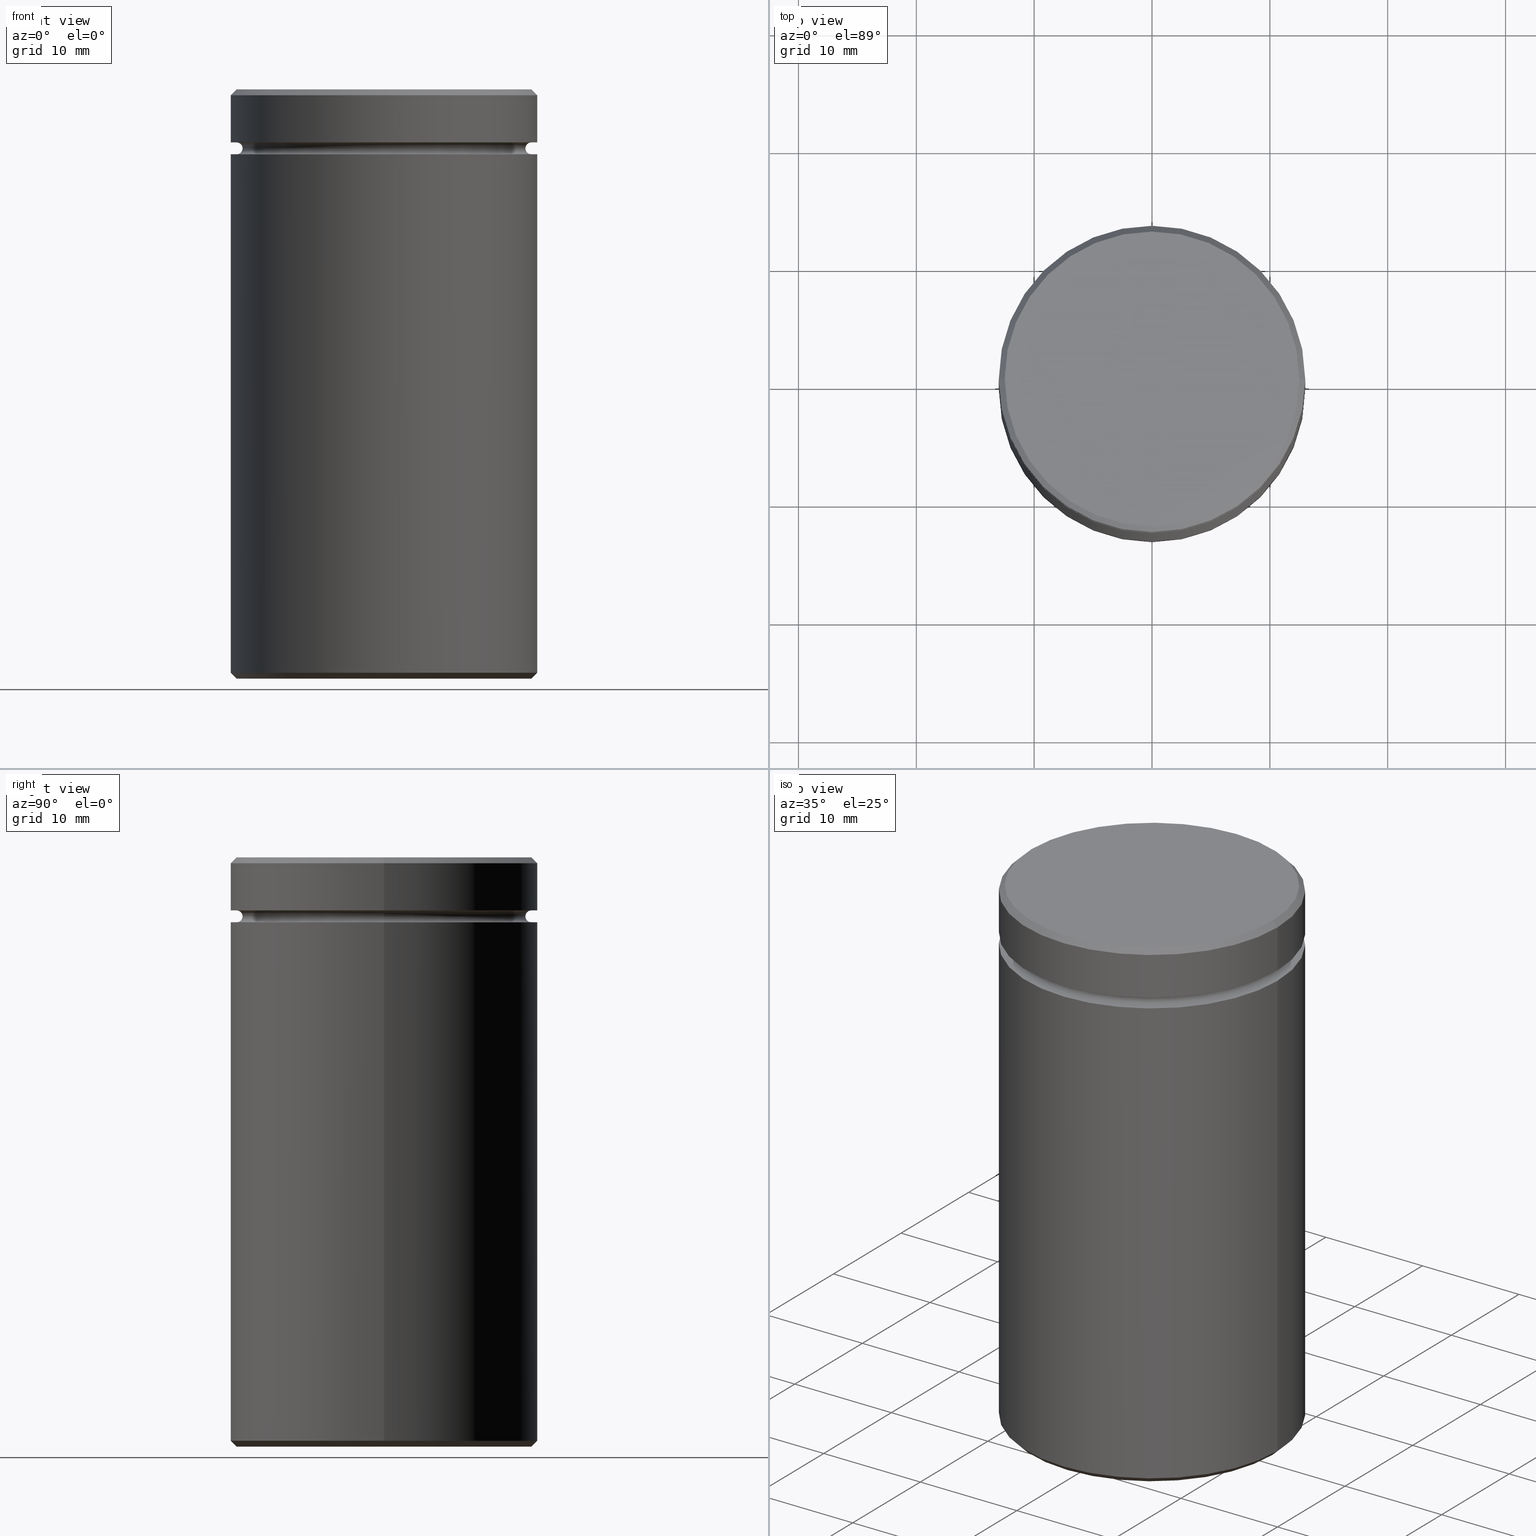
[diagram: canonical four-view strip — front | top / right | iso, engineering-drawing reading convention]
A machine part, canonical four-view strip (front | top / right | iso — engineering-drawing reading convention). The complete STEP part file that produces these views, byte-faithful:
ISO-10303-21;
HEADER;
FILE_DESCRIPTION (( 'STEP AP203' ),
    '1' );
FILE_NAME ('87cd.STEP',
    '2024-01-02T19:37:10',
    ( '' ),
    ( '' ),
    'SwSTEP 2.0',
    'SolidWorks 2019',
    '' );
FILE_SCHEMA (( 'CONFIG_CONTROL_DESIGN' ));
ENDSEC;

DATA;
#1 = PLANE ( 'NONE',  #507 ) ;
#2 = EDGE_CURVE ( 'NONE', #296, #242, #553, .T. ) ;
#3 = APPROVAL_ROLE ( '' ) ;
#4 = CIRCLE ( 'NONE', #468, 12.50000000000000000 ) ;
#5 = DIRECTION ( 'NONE',  ( 1.000000000000000000, 0.000000000000000000, 0.000000000000000000 ) ) ;
#6 = APPROVAL_DATE_TIME ( #141, #21 ) ;
#7 = ORIENTED_EDGE ( 'NONE', *, *, #301, .T. ) ;
#8 = VERTEX_POINT ( 'NONE', #210 ) ;
#9 = DIRECTION ( 'NONE',  ( 0.000000000000000000, 0.000000000000000000, -1.000000000000000000 ) ) ;
#10 = VERTEX_POINT ( 'NONE', #114 ) ;
#11 = CARTESIAN_POINT ( 'NONE',  ( 0.000000000000000000, 0.000000000000000000, -50.00000000000000000 ) ) ;
#12 = EDGE_CURVE ( 'NONE', #458, #66, #254, .T. ) ;
#13 = ORIENTED_EDGE ( 'NONE', *, *, #459, .F. ) ;
#14 = VECTOR ( 'NONE', #238, 1000.000000000000000 ) ;
#15 = CARTESIAN_POINT ( 'NONE',  ( 0.000000000000000000, 0.000000000000000000, -49.50000000000001421 ) ) ;
#16 = COORDINATED_UNIVERSAL_TIME_OFFSET ( 1, 0, .AHEAD. ) ;
#17 = ADVANCED_FACE ( 'NONE', ( #117 ), #181, .T. ) ;
#18 = ORIENTED_EDGE ( 'NONE', *, *, #2, .F. ) ;
#19 = DIRECTION ( 'NONE',  ( -1.000000000000000000, 0.000000000000000000, 0.000000000000000000 ) ) ;
#20 = ORIENTED_EDGE ( 'NONE', *, *, #328, .T. ) ;
#21 = APPROVAL ( #464, 'NEUR�EN�' ) ;
#22 = ORIENTED_EDGE ( 'NONE', *, *, #494, .F. ) ;
#23 = AXIS2_PLACEMENT_3D ( 'NONE', #344, #353, #541 ) ;
#24 = CARTESIAN_POINT ( 'NONE',  ( 13.00000000000000000, 0.000000000000000000, -49.50000000000001421 ) ) ;
#25 = DIRECTION ( 'NONE',  ( 1.000000000000000000, 0.000000000000000000, 0.000000000000000000 ) ) ;
#26 = EDGE_CURVE ( 'NONE', #242, #8, #173, .T. ) ;
#27 = VECTOR ( 'NONE', #81, 1000.000000000000000 ) ;
#28 = FACE_OUTER_BOUND ( 'NONE', #313, .T. ) ;
#29 = CC_DESIGN_PERSON_AND_ORGANIZATION_ASSIGNMENT ( #546, #277, ( #501 ) ) ;
#30 = EDGE_LOOP ( 'NONE', ( #495, #51 ) ) ;
#31 = AXIS2_PLACEMENT_3D ( 'NONE', #467, #336, #41 ) ;
#32 = VECTOR ( 'NONE', #50, 1000.000000000000000 ) ;
#33 = CARTESIAN_POINT ( 'NONE',  ( 0.000000000000000000, 0.000000000000000000, -5.500000000000000000 ) ) ;
#34 = EDGE_CURVE ( 'NONE', #296, #105, #122, .T. ) ;
#35 = PERSON_AND_ORGANIZATION_ROLE ( 'classification_officer' ) ;
#36 = APPROVAL_DATE_TIME ( #462, #488 ) ;
#37 = TOROIDAL_SURFACE ( 'NONE', #217, 12.50000000000000000, 0.5000000000000000000 ) ;
#38 = EDGE_LOOP ( 'NONE', ( #157, #475, #384, #64 ) ) ;
#39 = CIRCLE ( 'NONE', #397, 0.5000000000000004441 ) ;
#40 = DIRECTION ( 'NONE',  ( 1.000000000000000000, 0.000000000000000000, 0.000000000000000000 ) ) ;
#41 = DIRECTION ( 'NONE',  ( -1.000000000000000000, 0.000000000000000000, 0.000000000000000000 ) ) ;
#42 = ORIENTED_EDGE ( 'NONE', *, *, #448, .T. ) ;
#43 = CALENDAR_DATE ( 2024, 2, 1 ) ;
#44 = CARTESIAN_POINT ( 'NONE',  ( 13.00000000000000000, 0.000000000000000000, -4.500000000000000888 ) ) ;
#45 = ADVANCED_FACE ( 'NONE', ( #383, #329 ), #293, .T. ) ;
#46 = CARTESIAN_POINT ( 'NONE',  ( -12.50000000000000000, 1.530808498934191521E-15, -4.999999999999999112 ) ) ;
#47 = DIRECTION ( 'NONE',  ( 0.000000000000000000, 0.000000000000000000, -1.000000000000000000 ) ) ;
#48 = ORIENTED_EDGE ( 'NONE', *, *, #412, .T. ) ;
#49 = CARTESIAN_POINT ( 'NONE',  ( 0.000000000000000000, 0.000000000000000000, -49.50000000000001421 ) ) ;
#50 = DIRECTION ( 'NONE',  ( -0.000000000000000000, -0.000000000000000000, 1.000000000000000000 ) ) ;
#51 = ORIENTED_EDGE ( 'NONE', *, *, #77, .T. ) ;
#52 = APPROVAL_PERSON_ORGANIZATION ( #477, #21, #3 ) ;
#53 = DIRECTION ( 'NONE',  ( -1.000000000000000000, 0.000000000000000000, 0.000000000000000000 ) ) ;
#54 = EDGE_CURVE ( 'NONE', #105, #394, #460, .T. ) ;
#55 = CARTESIAN_POINT ( 'NONE',  ( 0.000000000000000000, 0.000000000000000000, -5.500000000000000000 ) ) ;
#56 = CARTESIAN_POINT ( 'NONE',  ( 0.000000000000000000, 0.000000000000000000, 0.000000000000000000 ) ) ;
#57 = VERTEX_POINT ( 'NONE', #78 ) ;
#58 = FACE_OUTER_BOUND ( 'NONE', #548, .T. ) ;
#59 = ORIENTED_EDGE ( 'NONE', *, *, #107, .T. ) ;
#60 = CARTESIAN_POINT ( 'NONE',  ( 0.000000000000000000, 0.000000000000000000, 0.000000000000000000 ) ) ;
#61 = EDGE_LOOP ( 'NONE', ( #22, #434, #162, #110 ) ) ;
#62 = DIRECTION ( 'NONE',  ( -0.000000000000000000, -0.000000000000000000, 1.000000000000000000 ) ) ;
#63 = AXIS2_PLACEMENT_3D ( 'NONE', #15, #156, #350 ) ;
#64 = ORIENTED_EDGE ( 'NONE', *, *, #113, .F. ) ;
#65 = ADVANCED_FACE ( 'NONE', ( #84 ), #1, .T. ) ;
#66 = VERTEX_POINT ( 'NONE', #190 ) ;
#67 = CARTESIAN_POINT ( 'NONE',  ( 0.000000000000000000, 0.000000000000000000, -4.999999999999999112 ) ) ;
#68 = CONICAL_SURFACE ( 'NONE', #380, 12.50000000000000355, 0.7853981633974430610 ) ;
#69 = CARTESIAN_POINT ( 'NONE',  ( 0.000000000000000000, 0.000000000000000000, -5.000000000000000888 ) ) ;
#70 = PERSON_AND_ORGANIZATION_ROLE ( 'design_owner' ) ;
#71 = ORIENTED_EDGE ( 'NONE', *, *, #2, .T. ) ;
#72 = DIRECTION ( 'NONE',  ( -0.000000000000000000, -1.000000000000000000, -0.000000000000000000 ) ) ;
#73 = CIRCLE ( 'NONE', #178, 12.00000000000000000 ) ;
#74 = ADVANCED_FACE ( 'NONE', ( #379 ), #225, .T. ) ;
#75 = ORIENTED_EDGE ( 'NONE', *, *, #368, .F. ) ;
#76 = APPLICATION_PROTOCOL_DEFINITION ( 'international standard', 'config_control_design', 1994, #193 ) ;
#77 = EDGE_CURVE ( 'NONE', #10, #423, #334, .T. ) ;
#78 = CARTESIAN_POINT ( 'NONE',  ( 13.00000000000000000, 0.000000000000000000, -0.5000000000000004441 ) ) ;
#79 = CIRCLE ( 'NONE', #372, 13.00000000000000000 ) ;
#80 = VECTOR ( 'NONE', #400, 999.9999999999998863 ) ;
#81 = DIRECTION ( 'NONE',  ( -0.7071067811865487940, 8.659560562354948882E-17, 0.7071067811865463515 ) ) ;
#82 = CARTESIAN_POINT ( 'NONE',  ( 0.000000000000000000, 0.000000000000000000, -4.500000000000000888 ) ) ;
#83 = DIRECTION ( 'NONE',  ( -1.000000000000000000, 0.000000000000000000, 0.000000000000000000 ) ) ;
#84 = FACE_OUTER_BOUND ( 'NONE', #409, .T. ) ;
#85 = ADVANCED_BREP_SHAPE_REPRESENTATION ( '87cd', ( #312, #202 ), #125 ) ;
#86 = DIRECTION ( 'NONE',  ( 0.000000000000000000, -0.000000000000000000, 1.000000000000000000 ) ) ;
#87 = AXIS2_PLACEMENT_3D ( 'NONE', #60, #513, #503 ) ;
#88 = CIRCLE ( 'NONE', #288, 12.50000000000000000 ) ;
#89 = CARTESIAN_POINT ( 'NONE',  ( 0.000000000000000000, 12.00000000000000000, -5.500000000000000000 ) ) ;
#90 = PRODUCT_RELATED_PRODUCT_CATEGORY ( 'detail', '', ( #251 ) ) ;
#91 = DIRECTION ( 'NONE',  ( 1.000000000000000000, 0.000000000000000000, 0.000000000000000000 ) ) ;
#92 = DATE_TIME_ROLE ( 'creation_date' ) ;
#93 = PLANE ( 'NONE',  #419 ) ;
#94 = ADVANCED_FACE ( 'NONE', ( #417 ), #68, .T. ) ;
#95 = LINE ( 'NONE', #338, #138 ) ;
#96 = ORIENTED_EDGE ( 'NONE', *, *, #526, .F. ) ;
#97 = DIRECTION ( 'NONE',  ( -0.000000000000000000, -0.000000000000000000, -1.000000000000000000 ) ) ;
#98 = CIRCLE ( 'NONE', #403, 13.00000000000000000 ) ;
#99 = CIRCLE ( 'NONE', #359, 0.5000000000000004441 ) ;
#100 = CYLINDRICAL_SURFACE ( 'NONE', #168, 13.00000000000000000 ) ;
#101 = ORIENTED_EDGE ( 'NONE', *, *, #463, .F. ) ;
#102 = DIRECTION ( 'NONE',  ( 0.000000000000000000, 0.000000000000000000, -1.000000000000000000 ) ) ;
#103 = ORIENTED_EDGE ( 'NONE', *, *, #377, .F. ) ;
#104 = AXIS2_PLACEMENT_3D ( 'NONE', #525, #216, #413 ) ;
#105 = VERTEX_POINT ( 'NONE', #518 ) ;
#106 = DIRECTION ( 'NONE',  ( -0.000000000000000000, -0.000000000000000000, 1.000000000000000000 ) ) ;
#107 = EDGE_CURVE ( 'NONE', #167, #455, #265, .T. ) ;
#108 = AXIS2_PLACEMENT_3D ( 'NONE', #309, #484, #19 ) ;
#109 = ORIENTED_EDGE ( 'NONE', *, *, #26, .F. ) ;
#110 = ORIENTED_EDGE ( 'NONE', *, *, #271, .F. ) ;
#111 = DIRECTION ( 'NONE',  ( 1.000000000000000000, 0.000000000000000000, 0.000000000000000000 ) ) ;
#112 = CARTESIAN_POINT ( 'NONE',  ( -12.00000000000000000, 1.500192328955507734E-15, -4.999999999999999112 ) ) ;
#113 = EDGE_CURVE ( 'NONE', #57, #508, #330, .T. ) ;
#114 = CARTESIAN_POINT ( 'NONE',  ( -12.50000000000000000, 1.530808498934191521E-15, -5.500000000000000000 ) ) ;
#115 = DIRECTION ( 'NONE',  ( 0.000000000000000000, 0.000000000000000000, -1.000000000000000000 ) ) ;
#116 = AXIS2_PLACEMENT_3D ( 'NONE', #346, #465, #332 ) ;
#117 = FACE_OUTER_BOUND ( 'NONE', #234, .T. ) ;
#118 = DIRECTION ( 'NONE',  ( 0.000000000000000000, 0.000000000000000000, -1.000000000000000000 ) ) ;
#119 = VECTOR ( 'NONE', #517, 1000.000000000000000 ) ;
#120 = ORIENTED_EDGE ( 'NONE', *, *, #271, .T. ) ;
#121 = AXIS2_PLACEMENT_3D ( 'NONE', #214, #124, #415 ) ;
#122 = CIRCLE ( 'NONE', #427, 12.50000000000001066 ) ;
#123 = DIRECTION ( 'NONE',  ( -0.000000000000000000, -0.000000000000000000, 1.000000000000000000 ) ) ;
#124 = DIRECTION ( 'NONE',  ( -0.000000000000000000, -0.000000000000000000, 1.000000000000000000 ) ) ;
#125 =( GEOMETRIC_REPRESENTATION_CONTEXT ( 3 ) GLOBAL_UNCERTAINTY_ASSIGNED_CONTEXT ( ( #559 ) ) GLOBAL_UNIT_ASSIGNED_CONTEXT ( ( #142, #220, #378 ) ) REPRESENTATION_CONTEXT ( 'NONE', 'WORKASPACE' ) );
#126 = VERTEX_POINT ( 'NONE', #299 ) ;
#127 = CARTESIAN_POINT ( 'NONE',  ( 12.00000000000000000, 0.000000000000000000, -4.999999999999999112 ) ) ;
#128 = CARTESIAN_POINT ( 'NONE',  ( 13.00000000000000000, 0.000000000000000000, 0.000000000000000000 ) ) ;
#129 = DIRECTION ( 'NONE',  ( -1.224646799147353207E-16, 1.000000000000000000, 0.000000000000000000 ) ) ;
#130 = EDGE_CURVE ( 'NONE', #327, #423, #396, .T. ) ;
#131 = VERTEX_POINT ( 'NONE', #421 ) ;
#132 = ORIENTED_EDGE ( 'NONE', *, *, #412, .F. ) ;
#133 = FACE_OUTER_BOUND ( 'NONE', #491, .T. ) ;
#134 = DIRECTION ( 'NONE',  ( 0.000000000000000000, 0.000000000000000000, -1.000000000000000000 ) ) ;
#135 = PRODUCT_DEFINITION ( 'NEZN�M�', '', #501, #257 ) ;
#136 = AXIS2_PLACEMENT_3D ( 'NONE', #284, #292, #25 ) ;
#137 = COORDINATED_UNIVERSAL_TIME_OFFSET ( 1, 0, .AHEAD. ) ;
#138 = VECTOR ( 'NONE', #291, 1000.000000000000000 ) ;
#139 = CALENDAR_DATE ( 2024, 2, 1 ) ;
#140 = EDGE_CURVE ( 'NONE', #423, #10, #4, .T. ) ;
#141 = DATE_AND_TIME ( #315, #212 ) ;
#142 =( LENGTH_UNIT ( ) NAMED_UNIT ( * ) SI_UNIT ( .MILLI., .METRE. ) );
#143 = CARTESIAN_POINT ( 'NONE',  ( -13.00000000000000000, 1.592040838891559095E-15, -0.5000000000000004441 ) ) ;
#144 = DIRECTION ( 'NONE',  ( -1.000000000000000000, 0.000000000000000000, 0.000000000000000000 ) ) ;
#145 = CC_DESIGN_PERSON_AND_ORGANIZATION_ASSIGNMENT ( #206, #70, ( #251 ) ) ;
#146 = DIRECTION ( 'NONE',  ( 1.000000000000000000, 0.000000000000000000, 0.000000000000000000 ) ) ;
#147 = VERTEX_POINT ( 'NONE', #294 ) ;
#148 = CIRCLE ( 'NONE', #535, 13.00000000000000000 ) ;
#149 = AXIS2_PLACEMENT_3D ( 'NONE', #348, #97, #240 ) ;
#150 = ORIENTED_EDGE ( 'NONE', *, *, #130, .F. ) ;
#151 = DIRECTION ( 'NONE',  ( -1.000000000000000000, 0.000000000000000000, 0.000000000000000000 ) ) ;
#152 = ORIENTED_EDGE ( 'NONE', *, *, #77, .F. ) ;
#153 = DIRECTION ( 'NONE',  ( 1.000000000000000000, 0.000000000000000000, 0.000000000000000000 ) ) ;
#154 = ADVANCED_FACE ( 'NONE', ( #466 ), #442, .F. ) ;
#155 = APPROVAL_DATE_TIME ( #241, #236 ) ;
#156 = DIRECTION ( 'NONE',  ( -0.000000000000000000, -0.000000000000000000, 1.000000000000000000 ) ) ;
#157 = ORIENTED_EDGE ( 'NONE', *, *, #536, .F. ) ;
#158 = DIRECTION ( 'NONE',  ( 1.000000000000000000, 0.000000000000000000, 0.000000000000000000 ) ) ;
#159 = PERSON_AND_ORGANIZATION ( #416, #209 ) ;
#160 = CIRCLE ( 'NONE', #510, 12.50000000000000000 ) ;
#161 = LOCAL_TIME ( 20, 37, 10.00000000000000000, #174 ) ;
#162 = ORIENTED_EDGE ( 'NONE', *, *, #26, .T. ) ;
#163 = CARTESIAN_POINT ( 'NONE',  ( -13.00000000000000000, 1.592040838891559095E-15, -5.500000000000000000 ) ) ;
#164 = CARTESIAN_POINT ( 'NONE',  ( -12.50000000000000000, 0.000000000000000000, -5.000000000000000888 ) ) ;
#165 = CARTESIAN_POINT ( 'NONE',  ( -8.000000000000000000, 0.000000000000000000, -50.00000000000000000 ) ) ;
#166 = FACE_OUTER_BOUND ( 'NONE', #318, .T. ) ;
#167 = VERTEX_POINT ( 'NONE', #185 ) ;
#168 = AXIS2_PLACEMENT_3D ( 'NONE', #56, #554, #230 ) ;
#169 = ORIENTED_EDGE ( 'NONE', *, *, #301, .F. ) ;
#170 = VERTEX_POINT ( 'NONE', #540 ) ;
#171 = EDGE_CURVE ( 'NONE', #8, #187, #148, .T. ) ;
#172 = CYLINDRICAL_SURFACE ( 'NONE', #306, 13.00000000000000000 ) ;
#173 = LINE ( 'NONE', #128, #424 ) ;
#174 = COORDINATED_UNIVERSAL_TIME_OFFSET ( 1, 0, .AHEAD. ) ;
#175 = DIRECTION ( 'NONE',  ( -0.000000000000000000, -0.000000000000000000, 1.000000000000000000 ) ) ;
#176 = DIRECTION ( 'NONE',  ( -1.000000000000000000, 0.000000000000000000, -0.000000000000000000 ) ) ;
#177 = CONICAL_SURFACE ( 'NONE', #479, 13.00000000000000000, 0.7853981633974500554 ) ;
#178 = AXIS2_PLACEMENT_3D ( 'NONE', #544, #62, #158 ) ;
#179 = CARTESIAN_POINT ( 'NONE',  ( 0.000000000000000000, 0.000000000000000000, 0.000000000000000000 ) ) ;
#180 = ADVANCED_FACE ( 'NONE', ( #166, #454 ), #373, .T. ) ;
#181 = CYLINDRICAL_SURFACE ( 'NONE', #121, 13.00000000000000000 ) ;
#182 = ORIENTED_EDGE ( 'NONE', *, *, #171, .T. ) ;
#183 = FACE_OUTER_BOUND ( 'NONE', #362, .T. ) ;
#184 = CARTESIAN_POINT ( 'NONE',  ( 12.50000000000000000, 1.530808498934191521E-15, -4.500000000000000888 ) ) ;
#185 = CARTESIAN_POINT ( 'NONE',  ( 8.000000000000000000, 9.797174393178825657E-16, -50.00000000000000000 ) ) ;
#186 = DIRECTION ( 'NONE',  ( 0.000000000000000000, 0.000000000000000000, -1.000000000000000000 ) ) ;
#187 = VERTEX_POINT ( 'NONE', #163 ) ;
#188 = APPLICATION_PROTOCOL_DEFINITION ( 'international standard', 'config_control_design', 1994, #496 ) ;
#189 = PLANE ( 'NONE',  #452 ) ;
#190 = CARTESIAN_POINT ( 'NONE',  ( -12.50000000000000000, 0.000000000000000000, -4.500000000000000888 ) ) ;
#191 = ADVANCED_FACE ( 'NONE', ( #320 ), #172, .T. ) ;
#192 = TOROIDAL_SURFACE ( 'NONE', #316, 12.50000000000000000, 0.5000000000000000000 ) ;
#193 = APPLICATION_CONTEXT ( 'configuration controlled 3d designs of mechanical parts and assemblies' ) ;
#194 = CARTESIAN_POINT ( 'NONE',  ( 0.000000000000000000, 0.000000000000000000, -19.00000000000000355 ) ) ;
#195 = DIRECTION ( 'NONE',  ( -1.000000000000000000, 0.000000000000000000, -0.000000000000000000 ) ) ;
#196 = DIRECTION ( 'NONE',  ( -1.000000000000000000, 0.000000000000000000, 0.000000000000000000 ) ) ;
#197 = ORIENTED_EDGE ( 'NONE', *, *, #107, .F. ) ;
#198 = CARTESIAN_POINT ( 'NONE',  ( 0.000000000000000000, 0.000000000000000000, -4.500000000000000888 ) ) ;
#199 = DIRECTION ( 'NONE',  ( 0.000000000000000000, 0.000000000000000000, -1.000000000000000000 ) ) ;
#200 = CIRCLE ( 'NONE', #500, 13.00000000000000000 ) ;
#201 = EDGE_LOOP ( 'NONE', ( #48, #237 ) ) ;
#202 = AXIS2_PLACEMENT_3D ( 'NONE', #414, #563, #111 ) ;
#203 = ORIENTED_EDGE ( 'NONE', *, *, #564, .T. ) ;
#204 = DIRECTION ( 'NONE',  ( 0.000000000000000000, 0.000000000000000000, -1.000000000000000000 ) ) ;
#205 = APPROVAL_ROLE ( '' ) ;
#206 = PERSON_AND_ORGANIZATION ( #416, #209 ) ;
#207 = ORIENTED_EDGE ( 'NONE', *, *, #428, .T. ) ;
#208 = CARTESIAN_POINT ( 'NONE',  ( 0.000000000000000000, 0.000000000000000000, -5.500000000000000000 ) ) ;
#209 = ORGANIZATION ( 'NEUR�EN�', 'NEUR�EN�', '' ) ;
#210 = CARTESIAN_POINT ( 'NONE',  ( 13.00000000000000000, 0.000000000000000000, -5.500000000000000000 ) ) ;
#211 = AXIS2_PLACEMENT_3D ( 'NONE', #82, #402, #552 ) ;
#212 = LOCAL_TIME ( 20, 37, 10.00000000000000000, #137 ) ;
#213 = CARTESIAN_POINT ( 'NONE',  ( 0.000000000000000000, 0.000000000000000000, 0.000000000000000000 ) ) ;
#214 = CARTESIAN_POINT ( 'NONE',  ( 0.000000000000000000, 0.000000000000000000, 0.000000000000000000 ) ) ;
#215 = SHAPE_DEFINITION_REPRESENTATION ( #461, #85 ) ;
#216 = DIRECTION ( 'NONE',  ( -0.000000000000000000, -0.000000000000000000, 1.000000000000000000 ) ) ;
#217 = AXIS2_PLACEMENT_3D ( 'NONE', #297, #381, #40 ) ;
#218 = AXIS2_PLACEMENT_3D ( 'NONE', #365, #556, #438 ) ;
#219 = DIRECTION ( 'NONE',  ( -0.000000000000000000, -0.000000000000000000, 1.000000000000000000 ) ) ;
#220 =( NAMED_UNIT ( * ) PLANE_ANGLE_UNIT ( ) SI_UNIT ( $, .RADIAN. ) );
#221 = ORIENTED_EDGE ( 'NONE', *, *, #398, .T. ) ;
#222 = ORIENTED_EDGE ( 'NONE', *, *, #459, .T. ) ;
#223 = PERSON_AND_ORGANIZATION ( #416, #209 ) ;
#224 = DIRECTION ( 'NONE',  ( 1.224646799147353207E-16, 1.000000000000000000, 0.000000000000000000 ) ) ;
#225 = CYLINDRICAL_SURFACE ( 'NONE', #104, 13.00000000000000000 ) ;
#226 = FACE_OUTER_BOUND ( 'NONE', #302, .T. ) ;
#227 = ORIENTED_EDGE ( 'NONE', *, *, #12, .F. ) ;
#228 = AXIS2_PLACEMENT_3D ( 'NONE', #470, #262, #47 ) ;
#229 = LOCAL_TIME ( 20, 37, 10.00000000000000000, #516 ) ;
#230 = DIRECTION ( 'NONE',  ( 1.000000000000000000, 0.000000000000000000, 0.000000000000000000 ) ) ;
#231 = CARTESIAN_POINT ( 'NONE',  ( -13.00000000000000000, 1.592040838891559095E-15, -49.50000000000001421 ) ) ;
#232 = LINE ( 'NONE', #539, #14 ) ;
#233 = ADVANCED_FACE ( 'NONE', ( #456 ), #192, .F. ) ;
#234 = EDGE_LOOP ( 'NONE', ( #248, #272, #515, #109 ) ) ;
#235 = CIRCLE ( 'NONE', #557, 12.50000000000001066 ) ;
#236 = APPROVAL ( #426, 'NEUR�EN�' ) ;
#237 = ORIENTED_EDGE ( 'NONE', *, *, #505, .T. ) ;
#238 = DIRECTION ( 'NONE',  ( -0.000000000000000000, -0.000000000000000000, -1.000000000000000000 ) ) ;
#239 = EDGE_CURVE ( 'NONE', #394, #242, #79, .T. ) ;
#240 = DIRECTION ( 'NONE',  ( -1.000000000000000000, 0.000000000000000000, 0.000000000000000000 ) ) ;
#241 = DATE_AND_TIME ( #446, #260 ) ;
#242 = VERTEX_POINT ( 'NONE', #255 ) ;
#243 = CC_DESIGN_PERSON_AND_ORGANIZATION_ASSIGNMENT ( #471, #35, ( #405 ) ) ;
#244 = AXIS2_PLACEMENT_3D ( 'NONE', #69, #443, #352 ) ;
#245 = CC_DESIGN_SECURITY_CLASSIFICATION ( #405, ( #501 ) ) ;
#246 = ADVANCED_FACE ( 'NONE', ( #133 ), #37, .F. ) ;
#247 = CARTESIAN_POINT ( 'NONE',  ( 0.000000000000000000, 0.000000000000000000, -49.50000000000001421 ) ) ;
#248 = ORIENTED_EDGE ( 'NONE', *, *, #485, .T. ) ;
#249 = DIRECTION ( 'NONE',  ( 0.000000000000000000, 0.000000000000000000, -1.000000000000000000 ) ) ;
#250 = APPROVAL_PERSON_ORGANIZATION ( #561, #488, #290 ) ;
#251 = PRODUCT ( '87cd', '87cd', '', ( #489 ) ) ;
#252 = DIRECTION ( 'NONE',  ( 1.000000000000000000, 0.000000000000000000, 0.000000000000000000 ) ) ;
#253 = ADVANCED_FACE ( 'NONE', ( #341 ), #349, .F. ) ;
#254 = CIRCLE ( 'NONE', #447, 0.5000000000000004441 ) ;
#255 = CARTESIAN_POINT ( 'NONE',  ( 13.00000000000000000, 0.000000000000000000, -49.50000000000001421 ) ) ;
#256 = DIRECTION ( 'NONE',  ( 0.000000000000000000, 0.000000000000000000, -1.000000000000000000 ) ) ;
#257 = DESIGN_CONTEXT ( 'detailed design', #496, 'design' ) ;
#258 = CARTESIAN_POINT ( 'NONE',  ( -13.00000000000000000, 1.592040838891559095E-15, -49.50000000000001421 ) ) ;
#259 = CIRCLE ( 'NONE', #87, 12.50000000000000355 ) ;
#260 = LOCAL_TIME ( 20, 37, 10.00000000000000000, #16 ) ;
#261 = CARTESIAN_POINT ( 'NONE',  ( 0.000000000000000000, 13.00000000000000000, -4.500000000000000888 ) ) ;
#262 = DIRECTION ( 'NONE',  ( 0.000000000000000000, -1.000000000000000000, 0.000000000000000000 ) ) ;
#263 = DATE_TIME_ROLE ( 'classification_date' ) ;
#264 = PERSON_AND_ORGANIZATION ( #416, #209 ) ;
#265 = CIRCLE ( 'NONE', #31, 8.000000000000000000 ) ;
#266 = CARTESIAN_POINT ( 'NONE',  ( 12.50000000000000000, 1.530808498934191521E-15, -5.000000000000000888 ) ) ;
#267 = ORIENTED_EDGE ( 'NONE', *, *, #485, .F. ) ;
#268 = CIRCLE ( 'NONE', #108, 8.000000000000000000 ) ;
#269 = DIRECTION ( 'NONE',  ( 1.000000000000000000, 0.000000000000000000, 0.000000000000000000 ) ) ;
#270 = EDGE_LOOP ( 'NONE', ( #13, #75, #433, #152 ) ) ;
#271 = EDGE_CURVE ( 'NONE', #187, #8, #98, .T. ) ;
#272 = ORIENTED_EDGE ( 'NONE', *, *, #494, .T. ) ;
#273 = AXIS2_PLACEMENT_3D ( 'NONE', #89, #86, #375 ) ;
#274 = EDGE_LOOP ( 'NONE', ( #182, #120 ) ) ;
#275 = EDGE_LOOP ( 'NONE', ( #543, #560, #221, #521 ) ) ;
#276 = VECTOR ( 'NONE', #440, 1000.000000000000000 ) ;
#277 = PERSON_AND_ORGANIZATION_ROLE ( 'creator' ) ;
#278 = ADVANCED_FACE ( 'NONE', ( #385, #183 ), #189, .T. ) ;
#279 = VERTEX_POINT ( 'NONE', #44 ) ;
#280 = VERTEX_POINT ( 'NONE', #425 ) ;
#281 = CARTESIAN_POINT ( 'NONE',  ( 0.000000000000000000, 0.000000000000000000, -19.00000000000000355 ) ) ;
#282 = VECTOR ( 'NONE', #298, 999.9999999999998863 ) ;
#283 = ADVANCED_FACE ( 'NONE', ( #226 ), #177, .T. ) ;
#284 = CARTESIAN_POINT ( 'NONE',  ( 0.000000000000000000, 0.000000000000000000, 0.000000000000000000 ) ) ;
#285 = CARTESIAN_POINT ( 'NONE',  ( 0.000000000000000000, 0.000000000000000000, -50.00000000000000000 ) ) ;
#286 = AXIS2_PLACEMENT_3D ( 'NONE', #411, #115, #324 ) ;
#287 = ADVANCED_FACE ( 'NONE', ( #527 ), #93, .T. ) ;
#288 = AXIS2_PLACEMENT_3D ( 'NONE', #343, #528, #196 ) ;
#289 = ORIENTED_EDGE ( 'NONE', *, *, #239, .F. ) ;
#290 = APPROVAL_ROLE ( '' ) ;
#291 = DIRECTION ( 'NONE',  ( -0.000000000000000000, -0.000000000000000000, 1.000000000000000000 ) ) ;
#292 = DIRECTION ( 'NONE',  ( -0.000000000000000000, -0.000000000000000000, 1.000000000000000000 ) ) ;
#293 = PLANE ( 'NONE',  #273 ) ;
#294 = CARTESIAN_POINT ( 'NONE',  ( 12.50000000000000355, 1.561424668912875506E-15, 0.000000000000000000 ) ) ;
#295 = DIRECTION ( 'NONE',  ( 1.000000000000000000, 0.000000000000000000, 0.000000000000000000 ) ) ;
#296 = VERTEX_POINT ( 'NONE', #534 ) ;
#297 = CARTESIAN_POINT ( 'NONE',  ( 0.000000000000000000, 0.000000000000000000, -4.999999999999999112 ) ) ;
#298 = DIRECTION ( 'NONE',  ( 0.7071067811865439090, 8.659560562354888485E-17, -0.7071067811865512365 ) ) ;
#299 = CARTESIAN_POINT ( 'NONE',  ( -8.000000000000000000, 0.000000000000000000, -19.00000000000000355 ) ) ;
#300 = AXIS2_PLACEMENT_3D ( 'NONE', #308, #542, #53 ) ;
#301 = EDGE_CURVE ( 'NONE', #508, #57, #200, .T. ) ;
#302 = EDGE_LOOP ( 'NONE', ( #407, #481, #267, #18 ) ) ;
#303 = CARTESIAN_POINT ( 'NONE',  ( 13.00000000000000000, 0.000000000000000000, 0.000000000000000000 ) ) ;
#304 = ORIENTED_EDGE ( 'NONE', *, *, #113, .T. ) ;
#305 = DIRECTION ( 'NONE',  ( -0.000000000000000000, -0.000000000000000000, 1.000000000000000000 ) ) ;
#306 = AXIS2_PLACEMENT_3D ( 'NONE', #502, #123, #252 ) ;
#307 = CC_DESIGN_DATE_AND_TIME_ASSIGNMENT ( #519, #263, ( #405 ) ) ;
#308 = CARTESIAN_POINT ( 'NONE',  ( 0.000000000000000000, 0.000000000000000000, 0.000000000000000000 ) ) ;
#309 = CARTESIAN_POINT ( 'NONE',  ( 0.000000000000000000, 0.000000000000000000, -19.00000000000000355 ) ) ;
#310 = ORIENTED_EDGE ( 'NONE', *, *, #398, .F. ) ;
#311 = CYLINDRICAL_SURFACE ( 'NONE', #149, 8.000000000000000000 ) ;
#312 = MANIFOLD_SOLID_BREP ( 'Zaoblit1', #357 ) ;
#313 = EDGE_LOOP ( 'NONE', ( #533, #351, #71, #289 ) ) ;
#314 = LINE ( 'NONE', #532, #80 ) ;
#315 = CALENDAR_DATE ( 2024, 2, 1 ) ;
#316 = AXIS2_PLACEMENT_3D ( 'NONE', #367, #565, #326 ) ;
#317 = AXIS2_PLACEMENT_3D ( 'NONE', #281, #451, #363 ) ;
#318 = EDGE_LOOP ( 'NONE', ( #450, #445 ) ) ;
#319 = FACE_OUTER_BOUND ( 'NONE', #275, .T. ) ;
#320 = FACE_OUTER_BOUND ( 'NONE', #558, .T. ) ;
#321 = EDGE_CURVE ( 'NONE', #131, #147, #259, .T. ) ;
#322 = ORIENTED_EDGE ( 'NONE', *, *, #337, .T. ) ;
#323 = AXIS2_PLACEMENT_3D ( 'NONE', #67, #395, #153 ) ;
#324 = DIRECTION ( 'NONE',  ( -1.000000000000000000, 0.000000000000000000, -0.000000000000000000 ) ) ;
#325 = ORIENTED_EDGE ( 'NONE', *, *, #545, .T. ) ;
#326 = DIRECTION ( 'NONE',  ( 1.000000000000000000, 0.000000000000000000, 0.000000000000000000 ) ) ;
#327 = VERTEX_POINT ( 'NONE', #127 ) ;
#328 = EDGE_CURVE ( 'NONE', #147, #131, #366, .T. ) ;
#329 = FACE_OUTER_BOUND ( 'NONE', #274, .T. ) ;
#330 = CIRCLE ( 'NONE', #547, 13.00000000000000000 ) ;
#331 = CIRCLE ( 'NONE', #23, 13.00000000000000000 ) ;
#332 = DIRECTION ( 'NONE',  ( -1.000000000000000000, 0.000000000000000000, 0.000000000000000000 ) ) ;
#333 = DIRECTION ( 'NONE',  ( -1.000000000000000000, 0.000000000000000000, 0.000000000000000000 ) ) ;
#334 = CIRCLE ( 'NONE', #457, 12.50000000000000000 ) ;
#335 = LINE ( 'NONE', #386, #119 ) ;
#336 = DIRECTION ( 'NONE',  ( 0.000000000000000000, 0.000000000000000000, -1.000000000000000000 ) ) ;
#337 = EDGE_CURVE ( 'NONE', #279, #280, #522, .T. ) ;
#338 = CARTESIAN_POINT ( 'NONE',  ( -13.00000000000000000, 1.592040838891559095E-15, 0.000000000000000000 ) ) ;
#339 = CARTESIAN_POINT ( 'NONE',  ( 0.000000000000000000, 0.000000000000000000, -5.500000000000000000 ) ) ;
#340 = CC_DESIGN_APPROVAL ( #236, ( #501 ) ) ;
#341 = FACE_OUTER_BOUND ( 'NONE', #430, .T. ) ;
#342 = DIRECTION ( 'NONE',  ( 0.000000000000000000, 0.000000000000000000, -1.000000000000000000 ) ) ;
#343 = CARTESIAN_POINT ( 'NONE',  ( 0.000000000000000000, 0.000000000000000000, -4.500000000000000888 ) ) ;
#344 = CARTESIAN_POINT ( 'NONE',  ( 0.000000000000000000, 0.000000000000000000, -4.500000000000000888 ) ) ;
#345 = ADVANCED_FACE ( 'NONE', ( #319 ), #498, .F. ) ;
#346 = CARTESIAN_POINT ( 'NONE',  ( 0.000000000000000000, 0.000000000000000000, -5.000000000000000888 ) ) ;
#347 = FACE_OUTER_BOUND ( 'NONE', #506, .T. ) ;
#348 = CARTESIAN_POINT ( 'NONE',  ( 0.000000000000000000, 0.000000000000000000, -19.00000000000000355 ) ) ;
#349 = TOROIDAL_SURFACE ( 'NONE', #116, 12.50000000000000000, 0.5000000000000000000 ) ;
#350 = DIRECTION ( 'NONE',  ( -1.000000000000000000, 0.000000000000000000, 0.000000000000000000 ) ) ;
#351 = ORIENTED_EDGE ( 'NONE', *, *, #34, .F. ) ;
#352 = DIRECTION ( 'NONE',  ( -1.000000000000000000, 0.000000000000000000, 0.000000000000000000 ) ) ;
#353 = DIRECTION ( 'NONE',  ( -0.000000000000000000, -0.000000000000000000, 1.000000000000000000 ) ) ;
#354 = FACE_OUTER_BOUND ( 'NONE', #389, .T. ) ;
#355 = ORIENTED_EDGE ( 'NONE', *, *, #448, .F. ) ;
#356 = EDGE_CURVE ( 'NONE', #455, #167, #453, .T. ) ;
#357 = CLOSED_SHELL ( 'NONE', ( #253, #246, #283, #472, #390, #17, #191, #180, #287, #512, #278, #45, #74, #345, #65, #94, #361, #233, #154 ) ) ;
#358 = CC_DESIGN_PERSON_AND_ORGANIZATION_ASSIGNMENT ( #223, #562, ( #135 ) ) ;
#359 = AXIS2_PLACEMENT_3D ( 'NONE', #266, #129, #420 ) ;
#360 = ORIENTED_EDGE ( 'NONE', *, *, #328, .F. ) ;
#361 = ADVANCED_FACE ( 'NONE', ( #28 ), #469, .T. ) ;
#362 = EDGE_LOOP ( 'NONE', ( #392, #355 ) ) ;
#363 = DIRECTION ( 'NONE',  ( -1.000000000000000000, 0.000000000000000000, 0.000000000000000000 ) ) ;
#364 = ORIENTED_EDGE ( 'NONE', *, *, #463, .T. ) ;
#365 = CARTESIAN_POINT ( 'NONE',  ( 0.000000000000000000, 0.000000000000000000, -49.50000000000001421 ) ) ;
#366 = CIRCLE ( 'NONE', #136, 12.50000000000000355 ) ;
#367 = CARTESIAN_POINT ( 'NONE',  ( 0.000000000000000000, 0.000000000000000000, -4.999999999999999112 ) ) ;
#368 = EDGE_CURVE ( 'NONE', #327, #458, #387, .T. ) ;
#369 = DIRECTION ( 'NONE',  ( 0.000000000000000000, 0.000000000000000000, -1.000000000000000000 ) ) ;
#370 = COORDINATED_UNIVERSAL_TIME_OFFSET ( 1, 0, .AHEAD. ) ;
#371 = EDGE_LOOP ( 'NONE', ( #399, #197 ) ) ;
#372 = AXIS2_PLACEMENT_3D ( 'NONE', #247, #175, #83 ) ;
#373 = PLANE ( 'NONE',  #286 ) ;
#374 = AXIS2_PLACEMENT_3D ( 'NONE', #499, #118, #408 ) ;
#375 = DIRECTION ( 'NONE',  ( 1.000000000000000000, 0.000000000000000000, 0.000000000000000000 ) ) ;
#376 = ORIENTED_EDGE ( 'NONE', *, *, #505, .F. ) ;
#377 = EDGE_CURVE ( 'NONE', #458, #327, #73, .T. ) ;
#378 =( NAMED_UNIT ( * ) SI_UNIT ( $, .STERADIAN. ) SOLID_ANGLE_UNIT ( ) );
#379 = FACE_OUTER_BOUND ( 'NONE', #61, .T. ) ;
#380 = AXIS2_PLACEMENT_3D ( 'NONE', #213, #134, #333 ) ;
#381 = DIRECTION ( 'NONE',  ( -0.000000000000000000, -0.000000000000000000, 1.000000000000000000 ) ) ;
#382 = DIRECTION ( 'NONE',  ( -1.000000000000000000, 1.224646799147353454E-16, 0.000000000000000000 ) ) ;
#383 = FACE_BOUND ( 'NONE', #30, .T. ) ;
#384 = ORIENTED_EDGE ( 'NONE', *, *, #418, .T. ) ;
#385 = FACE_BOUND ( 'NONE', #201, .T. ) ;
#386 = CARTESIAN_POINT ( 'NONE',  ( 8.000000000000000000, 9.797174393178825657E-16, -19.00000000000000355 ) ) ;
#387 = CIRCLE ( 'NONE', #323, 12.00000000000000000 ) ;
#388 = CIRCLE ( 'NONE', #537, 8.000000000000000000 ) ;
#389 = EDGE_LOOP ( 'NONE', ( #360, #487, #169, #449 ) ) ;
#390 = ADVANCED_FACE ( 'NONE', ( #58 ), #311, .F. ) ;
#391 = DIRECTION ( 'NONE',  ( 1.000000000000000000, 0.000000000000000000, 0.000000000000000000 ) ) ;
#392 = ORIENTED_EDGE ( 'NONE', *, *, #337, .F. ) ;
#393 = ORIENTED_EDGE ( 'NONE', *, *, #377, .T. ) ;
#394 = VERTEX_POINT ( 'NONE', #231 ) ;
#395 = DIRECTION ( 'NONE',  ( -0.000000000000000000, -0.000000000000000000, 1.000000000000000000 ) ) ;
#396 = CIRCLE ( 'NONE', #228, 0.5000000000000004441 ) ;
#397 = AXIS2_PLACEMENT_3D ( 'NONE', #46, #224, #382 ) ;
#398 = EDGE_CURVE ( 'NONE', #126, #455, #232, .T. ) ;
#399 = ORIENTED_EDGE ( 'NONE', *, *, #356, .F. ) ;
#400 = DIRECTION ( 'NONE',  ( -0.7071067811865439090, 0.000000000000000000, -0.7071067811865512365 ) ) ;
#401 = DIRECTION ( 'NONE',  ( 0.7071067811865487940, 0.000000000000000000, 0.7071067811865463515 ) ) ;
#402 = DIRECTION ( 'NONE',  ( -0.000000000000000000, -0.000000000000000000, 1.000000000000000000 ) ) ;
#403 = AXIS2_PLACEMENT_3D ( 'NONE', #55, #219, #91 ) ;
#404 = EDGE_CURVE ( 'NONE', #105, #296, #235, .T. ) ;
#405 = SECURITY_CLASSIFICATION ( '', '', #568 ) ;
#406 = DIRECTION ( 'NONE',  ( 0.000000000000000000, 0.000000000000000000, -1.000000000000000000 ) ) ;
#407 = ORIENTED_EDGE ( 'NONE', *, *, #404, .F. ) ;
#408 = DIRECTION ( 'NONE',  ( -1.000000000000000000, 0.000000000000000000, 0.000000000000000000 ) ) ;
#409 = EDGE_LOOP ( 'NONE', ( #207, #504 ) ) ;
#410 = CONICAL_SURFACE ( 'NONE', #300, 12.50000000000000355, 0.7853981633974430610 ) ;
#411 = CARTESIAN_POINT ( 'NONE',  ( 0.000000000000000000, 13.00000000000000000, -50.00000000000000000 ) ) ;
#412 = EDGE_CURVE ( 'NONE', #66, #538, #160, .T. ) ;
#413 = DIRECTION ( 'NONE',  ( 1.000000000000000000, 0.000000000000000000, 0.000000000000000000 ) ) ;
#414 = CARTESIAN_POINT ( 'NONE',  ( 0.000000000000000000, 0.000000000000000000, 0.000000000000000000 ) ) ;
#415 = DIRECTION ( 'NONE',  ( 1.000000000000000000, 0.000000000000000000, 0.000000000000000000 ) ) ;
#416 = PERSON ( 'NEUR�EN�', 'NEUR�EN�', 'NEUR�EN�', ('NEUR�EN�'), ('NEUR�EN�'), ('NEUR�EN�') ) ;
#417 = FACE_OUTER_BOUND ( 'NONE', #38, .T. ) ;
#418 = EDGE_CURVE ( 'NONE', #131, #508, #314, .T. ) ;
#419 = AXIS2_PLACEMENT_3D ( 'NONE', #179, #530, #269 ) ;
#420 = DIRECTION ( 'NONE',  ( -1.000000000000000000, -1.224646799147353454E-16, 0.000000000000000000 ) ) ;
#421 = CARTESIAN_POINT ( 'NONE',  ( -12.50000000000000355, 0.000000000000000000, 0.000000000000000000 ) ) ;
#422 = DIRECTION ( 'NONE',  ( -1.000000000000000000, 0.000000000000000000, 0.000000000000000000 ) ) ;
#423 = VERTEX_POINT ( 'NONE', #435 ) ;
#424 = VECTOR ( 'NONE', #514, 1000.000000000000000 ) ;
#425 = CARTESIAN_POINT ( 'NONE',  ( -13.00000000000000000, 1.592040838891559095E-15, -4.500000000000000888 ) ) ;
#426 = APPROVAL_STATUS ( 'not_yet_approved' ) ;
#427 = AXIS2_PLACEMENT_3D ( 'NONE', #285, #369, #422 ) ;
#428 = EDGE_CURVE ( 'NONE', #126, #170, #268, .T. ) ;
#429 = CARTESIAN_POINT ( 'NONE',  ( 12.50000000000000355, 1.530808498934191916E-15, 0.000000000000000000 ) ) ;
#430 = EDGE_LOOP ( 'NONE', ( #393, #203, #132, #227 ) ) ;
#431 = CIRCLE ( 'NONE', #63, 13.00000000000000000 ) ;
#432 = CC_DESIGN_DATE_AND_TIME_ASSIGNMENT ( #473, #92, ( #135 ) ) ;
#433 = ORIENTED_EDGE ( 'NONE', *, *, #130, .T. ) ;
#434 = ORIENTED_EDGE ( 'NONE', *, *, #239, .T. ) ;
#435 = CARTESIAN_POINT ( 'NONE',  ( 12.50000000000000000, 0.000000000000000000, -5.500000000000000000 ) ) ;
#436 = DIRECTION ( 'NONE',  ( 1.000000000000000000, 0.000000000000000000, 0.000000000000000000 ) ) ;
#437 = EDGE_LOOP ( 'NONE', ( #478, #20 ) ) ;
#438 = DIRECTION ( 'NONE',  ( 1.000000000000000000, 0.000000000000000000, 0.000000000000000000 ) ) ;
#439 = EDGE_CURVE ( 'NONE', #170, #126, #388, .T. ) ;
#440 = DIRECTION ( 'NONE',  ( -0.000000000000000000, -0.000000000000000000, 1.000000000000000000 ) ) ;
#441 = ORIENTED_EDGE ( 'NONE', *, *, #564, .F. ) ;
#442 = TOROIDAL_SURFACE ( 'NONE', #244, 12.50000000000000000, 0.5000000000000000000 ) ;
#443 = DIRECTION ( 'NONE',  ( 0.000000000000000000, 0.000000000000000000, -1.000000000000000000 ) ) ;
#444 = CC_DESIGN_PERSON_AND_ORGANIZATION_ASSIGNMENT ( #159, #551, ( #501 ) ) ;
#445 = ORIENTED_EDGE ( 'NONE', *, *, #404, .T. ) ;
#446 = CALENDAR_DATE ( 2024, 2, 1 ) ;
#447 = AXIS2_PLACEMENT_3D ( 'NONE', #164, #72, #406 ) ;
#448 = EDGE_CURVE ( 'NONE', #280, #279, #331, .T. ) ;
#449 = ORIENTED_EDGE ( 'NONE', *, *, #418, .F. ) ;
#450 = ORIENTED_EDGE ( 'NONE', *, *, #34, .T. ) ;
#451 = DIRECTION ( 'NONE',  ( -0.000000000000000000, -0.000000000000000000, -1.000000000000000000 ) ) ;
#452 = AXIS2_PLACEMENT_3D ( 'NONE', #261, #9, #195 ) ;
#453 = CIRCLE ( 'NONE', #374, 8.000000000000000000 ) ;
#454 = FACE_BOUND ( 'NONE', #371, .T. ) ;
#455 = VERTEX_POINT ( 'NONE', #165 ) ;
#456 = FACE_OUTER_BOUND ( 'NONE', #270, .T. ) ;
#457 = AXIS2_PLACEMENT_3D ( 'NONE', #33, #256, #295 ) ;
#458 = VERTEX_POINT ( 'NONE', #112 ) ;
#459 = EDGE_CURVE ( 'NONE', #458, #10, #39, .T. ) ;
#460 = LINE ( 'NONE', #258, #27 ) ;
#461 = PRODUCT_DEFINITION_SHAPE ( 'NONE', 'NONE',  #135 ) ;
#462 = DATE_AND_TIME ( #509, #229 ) ;
#463 = EDGE_CURVE ( 'NONE', #279, #57, #524, .T. ) ;
#464 = APPROVAL_STATUS ( 'not_yet_approved' ) ;
#465 = DIRECTION ( 'NONE',  ( 0.000000000000000000, 0.000000000000000000, -1.000000000000000000 ) ) ;
#466 = FACE_OUTER_BOUND ( 'NONE', #483, .T. ) ;
#467 = CARTESIAN_POINT ( 'NONE',  ( 0.000000000000000000, 0.000000000000000000, -50.00000000000000000 ) ) ;
#468 = AXIS2_PLACEMENT_3D ( 'NONE', #339, #342, #146 ) ;
#469 = CONICAL_SURFACE ( 'NONE', #218, 13.00000000000000000, 0.7853981633974500554 ) ;
#470 = CARTESIAN_POINT ( 'NONE',  ( 12.50000000000000000, 0.000000000000000000, -4.999999999999999112 ) ) ;
#471 = PERSON_AND_ORGANIZATION ( #416, #209 ) ;
#472 = ADVANCED_FACE ( 'NONE', ( #354 ), #410, .T. ) ;
#473 = DATE_AND_TIME ( #139, #161 ) ;
#474 = VECTOR ( 'NONE', #401, 1000.000000000000000 ) ;
#475 = ORIENTED_EDGE ( 'NONE', *, *, #321, .F. ) ;
#476 = DIRECTION ( 'NONE',  ( -0.000000000000000000, -0.000000000000000000, 1.000000000000000000 ) ) ;
#477 = PERSON_AND_ORGANIZATION ( #416, #209 ) ;
#478 = ORIENTED_EDGE ( 'NONE', *, *, #321, .T. ) ;
#479 = AXIS2_PLACEMENT_3D ( 'NONE', #49, #476, #5 ) ;
#480 = CC_DESIGN_APPROVAL ( #21, ( #135 ) ) ;
#481 = ORIENTED_EDGE ( 'NONE', *, *, #54, .T. ) ;
#482 = CARTESIAN_POINT ( 'NONE',  ( 0.000000000000000000, 0.000000000000000000, -0.5000000000000004441 ) ) ;
#483 = EDGE_LOOP ( 'NONE', ( #441, #531, #497, #376 ) ) ;
#484 = DIRECTION ( 'NONE',  ( 0.000000000000000000, 0.000000000000000000, -1.000000000000000000 ) ) ;
#485 = EDGE_CURVE ( 'NONE', #242, #394, #431, .T. ) ;
#486 = LINE ( 'NONE', #490, #276 ) ;
#487 = ORIENTED_EDGE ( 'NONE', *, *, #536, .T. ) ;
#488 = APPROVAL ( #511, 'NEUR�EN�' ) ;
#489 = MECHANICAL_CONTEXT ( 'NONE', #193, 'mechanical' ) ;
#490 = CARTESIAN_POINT ( 'NONE',  ( -13.00000000000000000, 1.592040838891559095E-15, 0.000000000000000000 ) ) ;
#491 = EDGE_LOOP ( 'NONE', ( #103, #222, #529, #150 ) ) ;
#492 = DIRECTION ( 'NONE',  ( -1.000000000000000000, 0.000000000000000000, 0.000000000000000000 ) ) ;
#493 = LOCAL_TIME ( 20, 37, 10.00000000000000000, #370 ) ;
#494 = EDGE_CURVE ( 'NONE', #394, #187, #486, .T. ) ;
#495 = ORIENTED_EDGE ( 'NONE', *, *, #140, .T. ) ;
#496 = APPLICATION_CONTEXT ( 'configuration controlled 3d designs of mechanical parts and assemblies' ) ;
#497 = ORIENTED_EDGE ( 'NONE', *, *, #12, .T. ) ;
#498 = CYLINDRICAL_SURFACE ( 'NONE', #317, 8.000000000000000000 ) ;
#499 = CARTESIAN_POINT ( 'NONE',  ( 0.000000000000000000, 0.000000000000000000, -50.00000000000000000 ) ) ;
#500 = AXIS2_PLACEMENT_3D ( 'NONE', #482, #102, #436 ) ;
#501 = PRODUCT_DEFINITION_FORMATION_WITH_SPECIFIED_SOURCE ( 'LIBOVOLN�', '', #251, .NOT_KNOWN. ) ;
#502 = CARTESIAN_POINT ( 'NONE',  ( 0.000000000000000000, 0.000000000000000000, 0.000000000000000000 ) ) ;
#503 = DIRECTION ( 'NONE',  ( 1.000000000000000000, 0.000000000000000000, 0.000000000000000000 ) ) ;
#504 = ORIENTED_EDGE ( 'NONE', *, *, #439, .T. ) ;
#505 = EDGE_CURVE ( 'NONE', #538, #66, #88, .T. ) ;
#506 = EDGE_LOOP ( 'NONE', ( #96, #42, #364, #304 ) ) ;
#507 = AXIS2_PLACEMENT_3D ( 'NONE', #566, #249, #176 ) ;
#508 = VERTEX_POINT ( 'NONE', #143 ) ;
#509 = CALENDAR_DATE ( 2024, 2, 1 ) ;
#510 = AXIS2_PLACEMENT_3D ( 'NONE', #198, #106, #144 ) ;
#511 = APPROVAL_STATUS ( 'not_yet_approved' ) ;
#512 = ADVANCED_FACE ( 'NONE', ( #347 ), #100, .T. ) ;
#513 = DIRECTION ( 'NONE',  ( -0.000000000000000000, -0.000000000000000000, 1.000000000000000000 ) ) ;
#514 = DIRECTION ( 'NONE',  ( -0.000000000000000000, -0.000000000000000000, 1.000000000000000000 ) ) ;
#515 = ORIENTED_EDGE ( 'NONE', *, *, #171, .F. ) ;
#516 = COORDINATED_UNIVERSAL_TIME_OFFSET ( 1, 0, .AHEAD. ) ;
#517 = DIRECTION ( 'NONE',  ( -0.000000000000000000, -0.000000000000000000, -1.000000000000000000 ) ) ;
#518 = CARTESIAN_POINT ( 'NONE',  ( -12.50000000000001066, 1.561424668912876097E-15, -50.00000000000000000 ) ) ;
#519 = DATE_AND_TIME ( #43, #493 ) ;
#520 = DIRECTION ( 'NONE',  ( 1.000000000000000000, 0.000000000000000000, 0.000000000000000000 ) ) ;
#521 = ORIENTED_EDGE ( 'NONE', *, *, #356, .T. ) ;
#522 = CIRCLE ( 'NONE', #211, 13.00000000000000000 ) ;
#523 = APPROVAL_PERSON_ORGANIZATION ( #264, #236, #205 ) ;
#524 = LINE ( 'NONE', #303, #32 ) ;
#525 = CARTESIAN_POINT ( 'NONE',  ( 0.000000000000000000, 0.000000000000000000, 0.000000000000000000 ) ) ;
#526 = EDGE_CURVE ( 'NONE', #280, #508, #95, .T. ) ;
#527 = FACE_OUTER_BOUND ( 'NONE', #437, .T. ) ;
#528 = DIRECTION ( 'NONE',  ( -0.000000000000000000, -0.000000000000000000, 1.000000000000000000 ) ) ;
#529 = ORIENTED_EDGE ( 'NONE', *, *, #140, .F. ) ;
#530 = DIRECTION ( 'NONE',  ( 0.000000000000000000, -0.000000000000000000, 1.000000000000000000 ) ) ;
#531 = ORIENTED_EDGE ( 'NONE', *, *, #368, .T. ) ;
#532 = CARTESIAN_POINT ( 'NONE',  ( -12.50000000000000355, 0.000000000000000000, 0.000000000000000000 ) ) ;
#533 = ORIENTED_EDGE ( 'NONE', *, *, #54, .F. ) ;
#534 = CARTESIAN_POINT ( 'NONE',  ( 12.50000000000001066, 0.000000000000000000, -50.00000000000000000 ) ) ;
#535 = AXIS2_PLACEMENT_3D ( 'NONE', #208, #305, #391 ) ;
#536 = EDGE_CURVE ( 'NONE', #147, #57, #567, .T. ) ;
#537 = AXIS2_PLACEMENT_3D ( 'NONE', #194, #204, #492 ) ;
#538 = VERTEX_POINT ( 'NONE', #184 ) ;
#539 = CARTESIAN_POINT ( 'NONE',  ( -8.000000000000000000, 0.000000000000000000, -19.00000000000000355 ) ) ;
#540 = CARTESIAN_POINT ( 'NONE',  ( 8.000000000000000000, 9.797174393178825657E-16, -19.00000000000000355 ) ) ;
#541 = DIRECTION ( 'NONE',  ( 1.000000000000000000, 0.000000000000000000, 0.000000000000000000 ) ) ;
#542 = DIRECTION ( 'NONE',  ( 0.000000000000000000, 0.000000000000000000, -1.000000000000000000 ) ) ;
#543 = ORIENTED_EDGE ( 'NONE', *, *, #545, .F. ) ;
#544 = CARTESIAN_POINT ( 'NONE',  ( 0.000000000000000000, 0.000000000000000000, -4.999999999999999112 ) ) ;
#545 = EDGE_CURVE ( 'NONE', #170, #167, #335, .T. ) ;
#546 = PERSON_AND_ORGANIZATION ( #416, #209 ) ;
#547 = AXIS2_PLACEMENT_3D ( 'NONE', #569, #186, #520 ) ;
#548 = EDGE_LOOP ( 'NONE', ( #550, #325, #59, #310 ) ) ;
#549 = CC_DESIGN_APPROVAL ( #488, ( #405 ) ) ;
#550 = ORIENTED_EDGE ( 'NONE', *, *, #439, .F. ) ;
#551 = PERSON_AND_ORGANIZATION_ROLE ( 'design_supplier' ) ;
#552 = DIRECTION ( 'NONE',  ( 1.000000000000000000, 0.000000000000000000, 0.000000000000000000 ) ) ;
#553 = LINE ( 'NONE', #24, #474 ) ;
#554 = DIRECTION ( 'NONE',  ( -0.000000000000000000, -0.000000000000000000, 1.000000000000000000 ) ) ;
#555 = ORIENTED_EDGE ( 'NONE', *, *, #526, .T. ) ;
#556 = DIRECTION ( 'NONE',  ( -0.000000000000000000, -0.000000000000000000, 1.000000000000000000 ) ) ;
#557 = AXIS2_PLACEMENT_3D ( 'NONE', #11, #199, #151 ) ;
#558 = EDGE_LOOP ( 'NONE', ( #322, #555, #7, #101 ) ) ;
#559 = UNCERTAINTY_MEASURE_WITH_UNIT (LENGTH_MEASURE( 1.000000000000000082E-05 ), #142, 'distance_accuracy_value', 'NONE');
#560 = ORIENTED_EDGE ( 'NONE', *, *, #428, .F. ) ;
#561 = PERSON_AND_ORGANIZATION ( #416, #209 ) ;
#562 = PERSON_AND_ORGANIZATION_ROLE ( 'creator' ) ;
#563 = DIRECTION ( 'NONE',  ( 0.000000000000000000, 0.000000000000000000, 1.000000000000000000 ) ) ;
#564 = EDGE_CURVE ( 'NONE', #327, #538, #99, .T. ) ;
#565 = DIRECTION ( 'NONE',  ( -0.000000000000000000, -0.000000000000000000, 1.000000000000000000 ) ) ;
#566 = CARTESIAN_POINT ( 'NONE',  ( 0.000000000000000000, 0.000000000000000000, -19.00000000000000355 ) ) ;
#567 = LINE ( 'NONE', #429, #282 ) ;
#568 = SECURITY_CLASSIFICATION_LEVEL ( 'unclassified' ) ;
#569 = CARTESIAN_POINT ( 'NONE',  ( 0.000000000000000000, 0.000000000000000000, -0.5000000000000004441 ) ) ;
ENDSEC;
END-ISO-10303-21;
